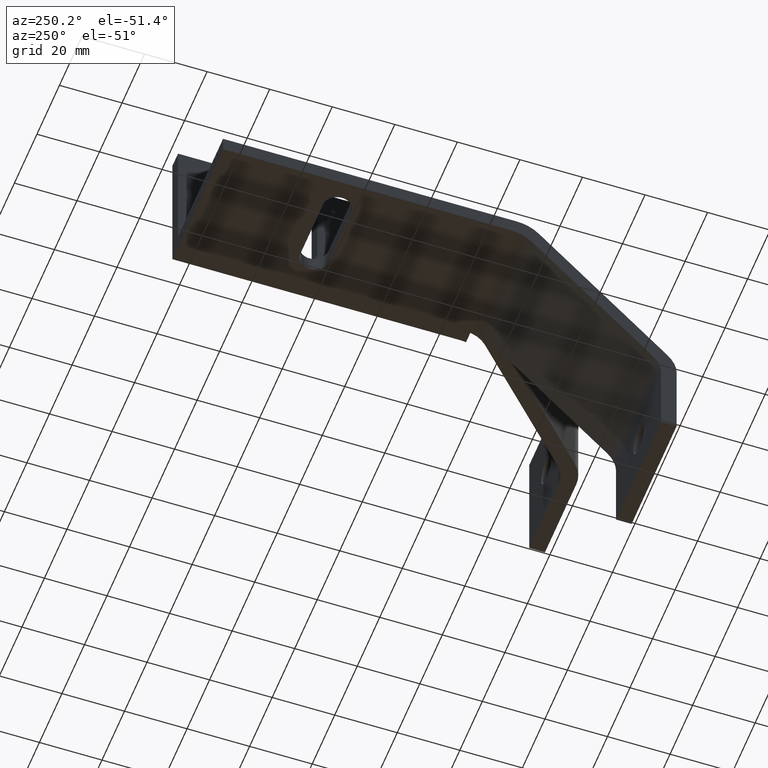
[diagram: clean part render]
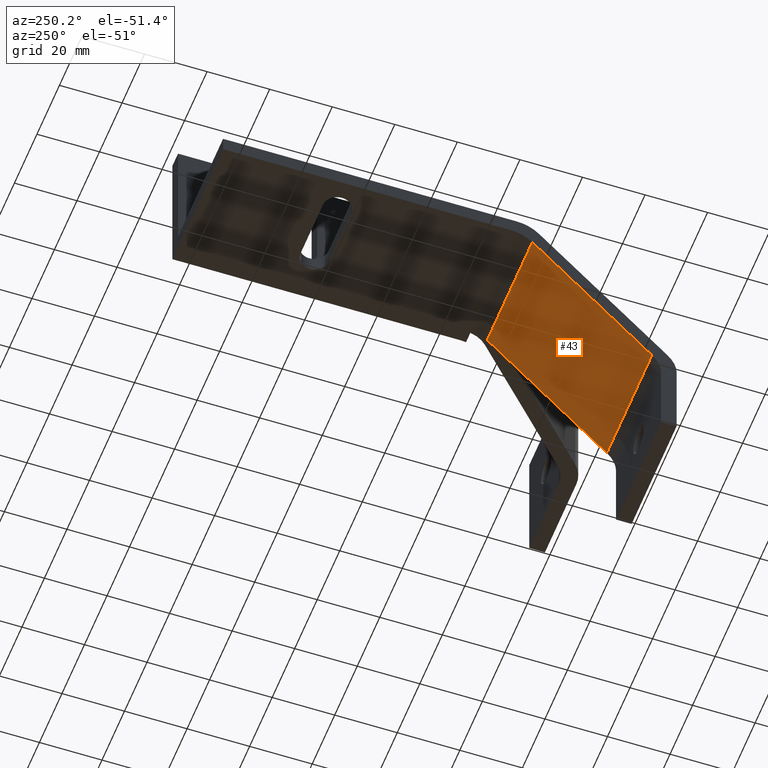
[diagram: same view with one face highlighted and labeled with its STEP entity id]
A machine part, auxiliary view. The second image highlights one B-rep face of the part: STEP entity #43.
In plain terms, the highlighted planar face has unit normal (0, 0.7071, -0.7071).
Its self-contained STEP definition (entity closure, byte-faithful):
#13 = VERTEX_POINT ( 'NONE', #1283 ) ;
#14 = VERTEX_POINT ( 'NONE', #1284 ) ;
#43 = ADVANCED_FACE ( 'NONE', ( #626 ), #1227, .T. ) ;
#84 = EDGE_CURVE ( 'NONE', #1095, #1096, #538, .T. ) ;
#104 = EDGE_CURVE ( 'NONE', #1095, #14, #502, .T. ) ;
#105 = EDGE_CURVE ( 'NONE', #1096, #13, #499, .T. ) ;
#106 = EDGE_CURVE ( 'NONE', #14, #13, #497, .T. ) ;
#184 = CARTESIAN_POINT ( 'NONE',  ( -117.0000000000000000, 46.14213561572436400, -7.928932185275634500 ) ) ;
#185 = CARTESIAN_POINT ( 'NONE',  ( -76.99999999750001200, 46.14213562400000500, -7.928932188000004500 ) ) ;
#496 = VECTOR ( 'NONE', #1028, 1000.000000000000000 ) ;
#497 = LINE ( 'NONE', #1027, #496 ) ;
#498 = VECTOR ( 'NONE', #1026, 1000.000000000000100 ) ;
#499 = LINE ( 'NONE', #1025, #498 ) ;
#500 = VECTOR ( 'NONE', #1024, 1000.000000000000000 ) ;
#502 = LINE ( 'NONE', #1023, #500 ) ;
#536 = VECTOR ( 'NONE', #1146, 1000.000000000000000 ) ;
#538 = LINE ( 'NONE', #1145, #536 ) ;
#626 = FACE_OUTER_BOUND ( 'NONE', #682, .T. ) ;
#682 = EDGE_LOOP ( 'NONE', ( #901, #898, #897, #899 ) ) ;
#756 = AXIS2_PLACEMENT_3D ( 'NONE', #1228, #1229, #1230 ) ;
#897 = ORIENTED_EDGE ( 'NONE', *, *, #105, .T. ) ;
#898 = ORIENTED_EDGE ( 'NONE', *, *, #84, .T. ) ;
#899 = ORIENTED_EDGE ( 'NONE', *, *, #106, .F. ) ;
#901 = ORIENTED_EDGE ( 'NONE', *, *, #104, .F. ) ;
#1023 = CARTESIAN_POINT ( 'NONE',  ( -117.0000000000000000, 46.14213562500000200, -7.928932164999985800 ) ) ;
#1024 = DIRECTION ( 'NONE',  ( 0.0000000000000000000, -0.7071067806314198500, -0.7071067817416751800 ) ) ;
#1025 = CARTESIAN_POINT ( 'NONE',  ( -77.00000000000001400, 7.928932188000001000, -46.14213562400001200 ) ) ;
#1026 = DIRECTION ( 'NONE',  ( -0.0000000000000000000, -0.7071067811865474600, -0.7071067811865474600 ) ) ;
#1027 = CARTESIAN_POINT ( 'NONE',  ( -97.00000000000000000, 7.928932189675038900, -46.14213562259400400 ) ) ;
#1028 = DIRECTION ( 'NONE',  ( 1.000000000000000000, -0.0000000000000000000, -0.0000000000000000000 ) ) ;
#1095 = VERTEX_POINT ( 'NONE', #184 ) ;
#1096 = VERTEX_POINT ( 'NONE', #185 ) ;
#1145 = CARTESIAN_POINT ( 'NONE',  ( -97.00000000000000000, 46.14213562400001200, -7.928932188000001000 ) ) ;
#1146 = DIRECTION ( 'NONE',  ( 1.000000000000000000, 0.0000000000000000000, 0.0000000000000000000 ) ) ;
#1227 = PLANE ( 'NONE',  #756 ) ;
#1228 = CARTESIAN_POINT ( 'NONE',  ( -117.0000000000000000, 7.928932188000001000, -46.14213562400001200 ) ) ;
#1229 = DIRECTION ( 'NONE',  ( 0.0000000000000000000, 0.7071067811865475700, -0.7071067811865475700 ) ) ;
#1230 = DIRECTION ( 'NONE',  ( 0.0000000000000000000, 0.7071067811865475700, 0.7071067811865475700 ) ) ;
#1283 = CARTESIAN_POINT ( 'NONE',  ( -77.00000000000000000, 7.928932188837523000, -46.14213562329700800 ) ) ;
#1284 = CARTESIAN_POINT ( 'NONE',  ( -117.0000000000000000, 7.928932195561887200, -46.14213563557263600 ) ) ;